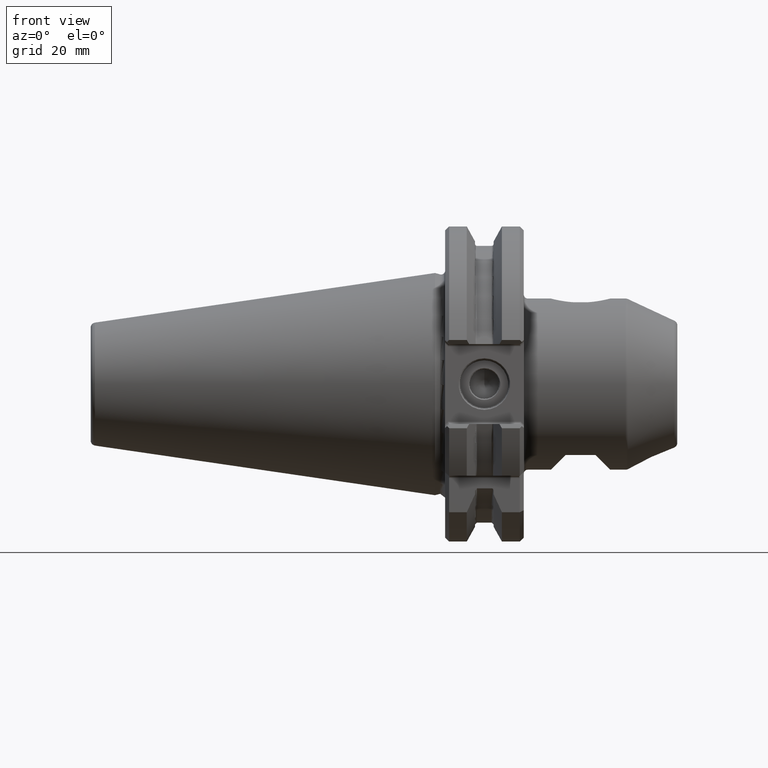
[diagram: clean part render]
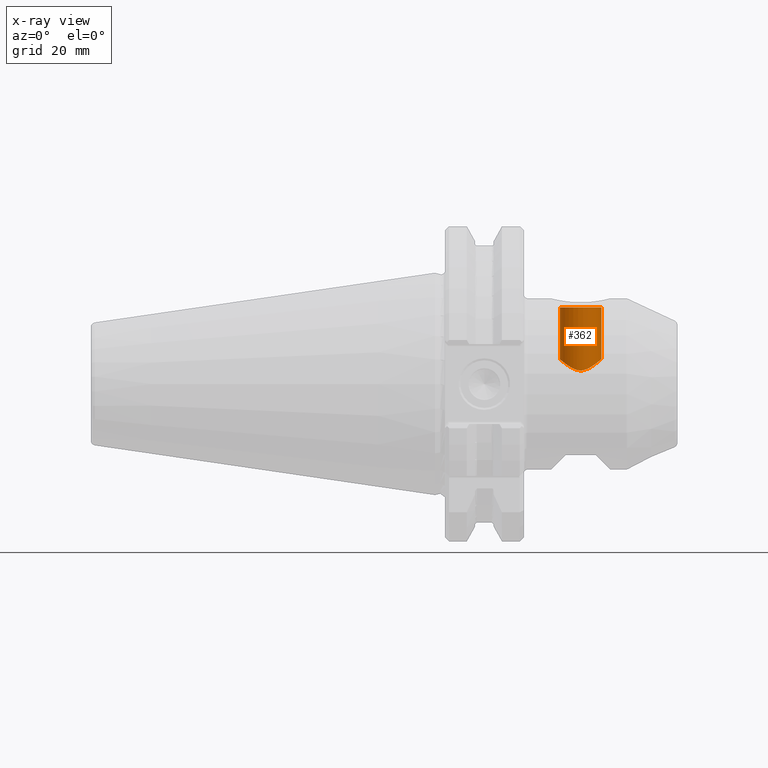
[diagram: x-ray — body ghosted, one internal face saturated and labeled with its STEP entity id]
A machine part, front view, then the same camera in x-ray: the body is ghosted and one INTERNAL B-rep face — a face not visible from any outside direction — is saturated and labeled: STEP entity #362.
In plain terms, the highlighted cylindrical surface (bore or boss wall) has radius 4.188 mm, axis along (-0, -0, 1).
Its self-contained STEP definition (entity closure, byte-faithful):
#362 = ADVANCED_FACE( '', ( #769, #770 ), #771, .F. );
#769 = FACE_OUTER_BOUND( '', #1201, .T. );
#770 = FACE_OUTER_BOUND( '', #1202, .T. );
#771 = CYLINDRICAL_SURFACE( '', #1203, 4.18800000000000 );
#1201 = EDGE_LOOP( '', ( #2139 ) );
#1202 = EDGE_LOOP( '', ( #2140 ) );
#1203 = AXIS2_PLACEMENT_3D( '', #2141, #2142, #2143 );
#2139 = ORIENTED_EDGE( '', *, *, #2580, .F. );
#2140 = ORIENTED_EDGE( '', *, *, #2649, .T. );
#2141 = CARTESIAN_POINT( '', ( 30.5000000000000, 0.000000000000000, 56.3537044035261 ) );
#2142 = DIRECTION( '', ( -0.000000000000000, -0.000000000000000, 1.00000000000000 ) );
#2143 = DIRECTION( '', ( -1.00000000000000, 0.000000000000000, 0.000000000000000 ) );
#2580 = EDGE_CURVE( '', #3128, #3128, #3129, .T. );
#2649 = EDGE_CURVE( '', #3230, #3230, #3231, .T. );
#3128 = VERTEX_POINT( '', #3906 );
#3129 = B_SPLINE_CURVE_WITH_KNOTS( '', 3, ( #3907, #3908, #3909, #3910, #3911, #3912, #3913, #3914, #3915, #3916, #3917, #3918, #3919, #3920, #3921, #3922, #3923, #3924, #3925, #3926, #3927, #3928, #3929, #3930, #3931, #3932, #3933, #3934, #3935, #3936, #3937, #3938, #3939, #3940, #3941, #3942, #3943, #3944, #3945, #3946, #3947, #3948, #3949, #3950, #3951, #3952, #3953, #3954, #3955, #3956, #3957, #3958, #3959, #3960, #3961, #3962, #3963, #3964, #3965, #3966, #3967, #3968, #3969, #3970, #3971, #3972, #3973, #3974, #3975, #3976, #3977, #3978, #3979, #3980 ), .UNSPECIFIED., .T., .F., ( 2, 2, 2, 2, 2, 2, 2, 2, 2, 2, 2, 2, 2, 2, 2, 2, 2, 2, 2, 2, 2, 2, 2, 2, 2, 2, 2, 2, 2, 2, 2, 2, 2, 2, 2, 2, 2, 2, 2 ), ( -0.000874646412545701, 0.000000000000000, 0.000874646412545691, 0.00131196961881854, 0.00174929282509138, 0.00262393923763707, 0.00349858565018277, 0.00437323206272846, 0.00524787847527416, 0.00612252488781985, 0.00699717130036554, 0.00787181771291124, 0.00874646412545693, 0.00962111053800263, 0.0104957569505483, 0.0113704033630940, 0.0122450497756397, 0.0126823729819126, 0.0131196961881854, 0.0139943426007311, 0.0144316658070039, 0.0148689890132768, 0.0157436354258225, 0.0166182818383682, 0.0174929282509139, 0.0183675746634595, 0.0192422210760052, 0.0201168674885509, 0.0209915139010966, 0.0218661603136423, 0.0227408067261880, 0.0236154531387337, 0.0244900995512794, 0.0253647459638251, 0.0262393923763708, 0.0266767155826437, 0.0271140387889165, 0.0279886852014622, 0.0288633316140079 ), .UNSPECIFIED. );
#3230 = VERTEX_POINT( '', #4212 );
#3231 = CIRCLE( '', #4213, 4.18800000000000 );
#3906 = CARTESIAN_POINT( '', ( 26.3120000000000, 0.000000000000000, 5.00000000000000 ) );
#3907 = CARTESIAN_POINT( '', ( 26.3120000000000, 0.296486682696749, 5.00000000000000 ) );
#3908 = CARTESIAN_POINT( '', ( 26.3120000000000, -0.296486682696746, 5.00000000000000 ) );
#3909 = CARTESIAN_POINT( '', ( 26.3431094835130, -0.585463473979483, 4.97386134109763 ) );
#3910 = CARTESIAN_POINT( '', ( 26.4327202922224, -1.00864777799625, 4.89930053067789 ) );
#3911 = CARTESIAN_POINT( '', ( 26.4701438787176, -1.14891559947651, 4.86824226178425 ) );
#3912 = CARTESIAN_POINT( '', ( 26.5577900830607, -1.42081961689117, 4.79594217963477 ) );
#3913 = CARTESIAN_POINT( '', ( 26.6078089413848, -1.55226232806206, 4.75486715071113 ) );
#3914 = CARTESIAN_POINT( '', ( 26.7750677349315, -1.93430243451990, 4.61861385222233 ) );
#3915 = CARTESIAN_POINT( '', ( 26.9110521602616, -2.17495291049116, 4.50911696653407 ) );
#3916 = CARTESIAN_POINT( '', ( 27.2170842455038, -2.61408318691234, 4.26955794815360 ) );
#3917 = CARTESIAN_POINT( '', ( 27.3863653937483, -2.81275618820905, 4.13998261358874 ) );
#3918 = CARTESIAN_POINT( '', ( 27.7563539649242, -3.17470065829352, 3.86940940523951 ) );
#3919 = CARTESIAN_POINT( '', ( 27.9588008296538, -3.33885068351167, 3.72717141981774 ) );
#3920 = CARTESIAN_POINT( '', ( 28.3868645777391, -3.62495183379598, 3.44955865034234 ) );
#3921 = CARTESIAN_POINT( '', ( 28.6130669880920, -3.74815268006661, 3.31327850751488 ) );
#3922 = CARTESIAN_POINT( '', ( 29.0991241492108, -3.95559244048151, 3.06263798485163 ) );
#3923 = CARTESIAN_POINT( '', ( 29.3615790631192, -4.04010935657956, 2.94750034525876 ) );
#3924 = CARTESIAN_POINT( '', ( 29.9121430620333, -4.15606906380712, 2.78160598131504 ) );
#3925 = CARTESIAN_POINT( '', ( 30.2074850650999, -4.18793089727990, 2.73152609644415 ) );
#3926 = CARTESIAN_POINT( '', ( 30.7905328599579, -4.18806886820356, 2.73131455001637 ) );
#3927 = CARTESIAN_POINT( '', ( 31.0863227998420, -4.15624424173229, 2.78132806920792 ) );
#3928 = CARTESIAN_POINT( '', ( 31.6357440662051, -4.04081997107358, 2.94651081567156 ) );
#3929 = CARTESIAN_POINT( '', ( 31.8980333763595, -3.95661826083821, 3.06131290369592 ) );
#3930 = CARTESIAN_POINT( '', ( 32.3847839413548, -3.74925524308824, 3.31203108054693 ) );
#3931 = CARTESIAN_POINT( '', ( 32.6113275251374, -3.62602960204795, 3.44843695168325 ) );
#3932 = CARTESIAN_POINT( '', ( 33.0400842661373, -3.33972551480701, 3.72639793505868 ) );
#3933 = CARTESIAN_POINT( '', ( 33.2423301925141, -3.17581466854901, 3.86847794336035 ) );
#3934 = CARTESIAN_POINT( '', ( 33.6120928757951, -2.81443628923642, 4.13882456514718 ) );
#3935 = CARTESIAN_POINT( '', ( 33.7814399388336, -2.61594898731365, 4.26842011360405 ) );
#3936 = CARTESIAN_POINT( '', ( 34.0878576944257, -2.17676694686164, 4.50824633638154 ) );
#3937 = CARTESIAN_POINT( '', ( 34.2237346874440, -1.93653537382587, 4.61764799788346 ) );
#3938 = CARTESIAN_POINT( '', ( 34.3909688894637, -1.55530107064965, 4.75386675783463 ) );
#3939 = CARTESIAN_POINT( '', ( 34.4409956410854, -1.42415380338977, 4.79494399074993 ) );
#3940 = CARTESIAN_POINT( '', ( 34.5287047807234, -1.15290870780824, 4.86728912656710 ) );
#3941 = CARTESIAN_POINT( '', ( 34.5663605074033, -1.01235245664114, 4.89853719849738 ) );
#3942 = CARTESIAN_POINT( '', ( 34.6563761789515, -0.589140178219158, 4.97343046362643 ) );
#3943 = CARTESIAN_POINT( '', ( 34.6875255564985, -0.301079525181590, 4.99960260627286 ) );
#3944 = CARTESIAN_POINT( '', ( 34.6882292463308, 0.140529612117784, 5.00019201665312 ) );
#3945 = CARTESIAN_POINT( '', ( 34.6805638697870, 0.289040639588959, 4.99376625015286 ) );
#3946 = CARTESIAN_POINT( '', ( 34.6502875680319, 0.579458249869996, 4.96844784506765 ) );
#3947 = CARTESIAN_POINT( '', ( 34.6277100039369, 0.722616564261125, 4.94958315540366 ) );
#3948 = CARTESIAN_POINT( '', ( 34.5384251458161, 1.14618874703116, 4.87528909922063 ) );
#3949 = CARTESIAN_POINT( '', ( 34.4491349687878, 1.42171746131161, 4.80126431478152 ) );
#3950 = CARTESIAN_POINT( '', ( 34.2260384619924, 1.93224866962143, 4.61950588688216 ) );
#3951 = CARTESIAN_POINT( '', ( 34.0899764437828, 2.17326040223709, 4.50993708344100 ) );
#3952 = CARTESIAN_POINT( '', ( 33.7840936618329, 2.61260798114749, 4.27046517482258 ) );
#3953 = CARTESIAN_POINT( '', ( 33.6148095599564, 2.81147676207610, 4.14086494454109 ) );
#3954 = CARTESIAN_POINT( '', ( 33.2446128439554, 3.17388413702906, 3.87009348173122 ) );
#3955 = CARTESIAN_POINT( '', ( 33.0420639085803, 3.33819712285729, 3.72776159657953 ) );
#3956 = CARTESIAN_POINT( '', ( 32.6139670866362, 3.62447128599167, 3.45006876004056 ) );
#3957 = CARTESIAN_POINT( '', ( 32.3876493104596, 3.74781491242320, 3.31367192921015 ) );
#3958 = CARTESIAN_POINT( '', ( 31.9010175456427, 3.95556397671202, 3.06268703891782 ) );
#3959 = CARTESIAN_POINT( '', ( 31.6386082128923, 4.04006794497256, 2.94755922527399 ) );
#3960 = CARTESIAN_POINT( '', ( 31.0877257198988, 4.15609866829820, 2.78156399276784 ) );
#3961 = CARTESIAN_POINT( '', ( 30.7924852279173, 4.18793878569290, 2.73151400139336 ) );
#3962 = CARTESIAN_POINT( '', ( 30.2092704217789, 4.18806103031081, 2.73132656760608 ) );
#3963 = CARTESIAN_POINT( '', ( 29.9132870683987, 4.15619719252918, 2.78140184290840 ) );
#3964 = CARTESIAN_POINT( '', ( 29.3636479196309, 4.04065726296310, 2.94673721227144 ) );
#3965 = CARTESIAN_POINT( '', ( 29.1011288787767, 3.95632124544413, 3.06169941104939 ) );
#3966 = CARTESIAN_POINT( '', ( 28.6144465200840, 3.74886733365185, 3.31247261052086 ) );
#3967 = CARTESIAN_POINT( '', ( 28.3877755183792, 3.62552944036540, 3.44898001595506 ) );
#3968 = CARTESIAN_POINT( '', ( 27.9585899281855, 3.33874090498115, 3.72729607662435 ) );
#3969 = CARTESIAN_POINT( '', ( 27.7565136759306, 3.17482206441532, 3.86929879950690 ) );
#3970 = CARTESIAN_POINT( '', ( 27.3867817922415, 2.81319831187483, 4.13967191920187 ) );
#3971 = CARTESIAN_POINT( '', ( 27.2173045955654, 2.61443414724976, 4.26938305907099 ) );
#3972 = CARTESIAN_POINT( '', ( 26.9104767722489, 2.17409246032374, 4.50956977874292 ) );
#3973 = CARTESIAN_POINT( '', ( 26.7750959561281, 1.93430841021159, 4.61859199143574 ) );
#3974 = CARTESIAN_POINT( '', ( 26.6080075181179, 1.55274508900860, 4.75470482163216 ) );
#3975 = CARTESIAN_POINT( '', ( 26.5579959155633, 1.42139177045368, 4.79577291806762 ) );
#3976 = CARTESIAN_POINT( '', ( 26.4703038124371, 1.14947788267972, 4.86810980196774 ) );
#3977 = CARTESIAN_POINT( '', ( 26.4328349303481, 1.00911949849034, 4.89920530802105 ) );
#3978 = CARTESIAN_POINT( '', ( 26.3431402400015, 0.585747727119172, 4.97383542647670 ) );
#3979 = CARTESIAN_POINT( '', ( 26.3120000000000, 0.296486682696749, 5.00000000000000 ) );
#3980 = CARTESIAN_POINT( '', ( 26.3120000000000, -0.296486682696746, 5.00000000000000 ) );
#4212 = CARTESIAN_POINT( '', ( 34.6880000000000, 0.000000000000000, 15.4380000000000 ) );
#4213 = AXIS2_PLACEMENT_3D( '', #4802, #4803, #4804 );
#4802 = CARTESIAN_POINT( '', ( 30.5000000000000, 0.000000000000000, 15.4380000000000 ) );
#4803 = DIRECTION( '', ( 0.000000000000000, 0.000000000000000, 1.00000000000000 ) );
#4804 = DIRECTION( '', ( 1.00000000000000, 0.000000000000000, 0.000000000000000 ) );